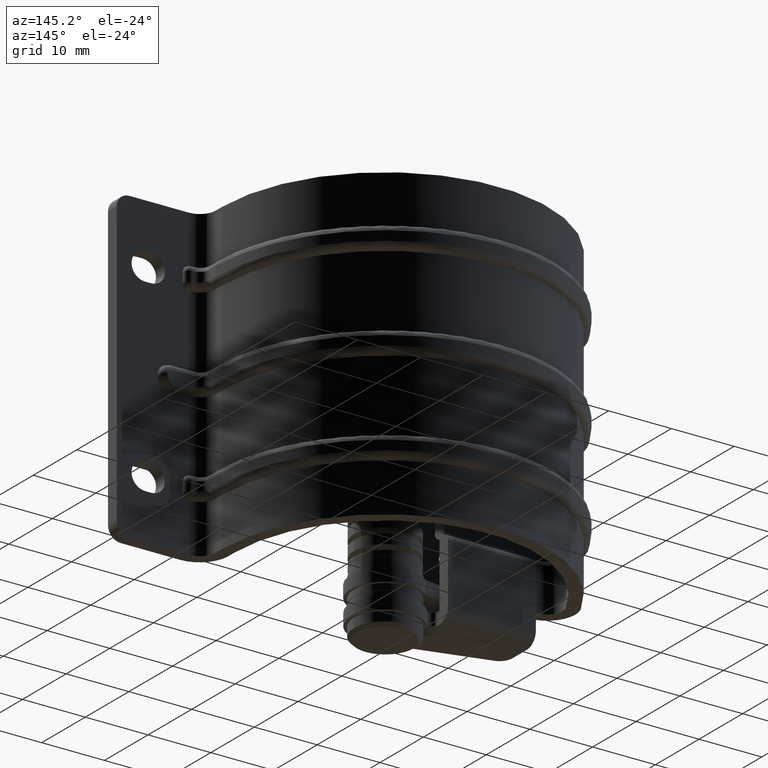
[diagram: clean part render]
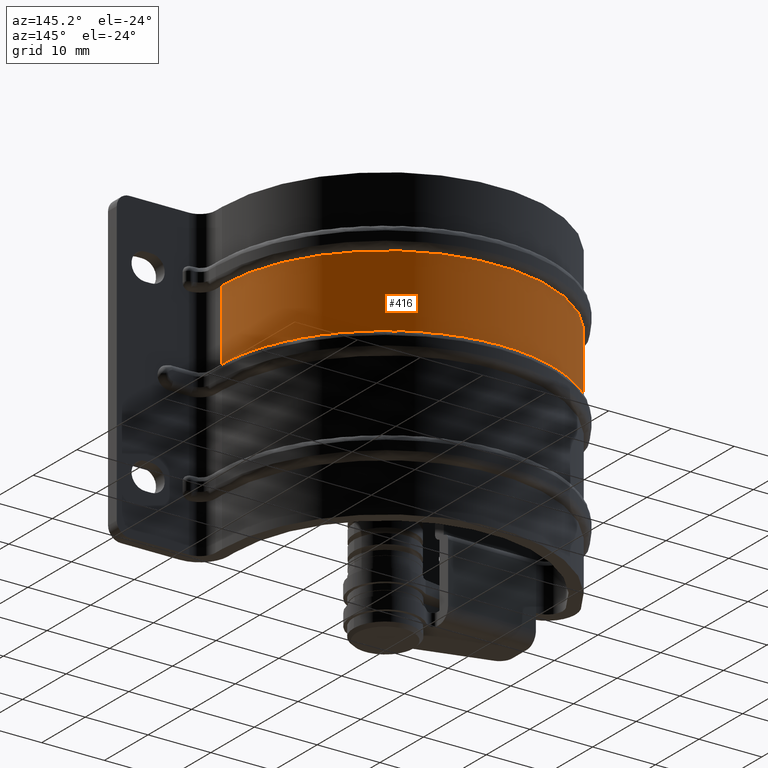
[diagram: same view with one face highlighted and labeled with its STEP entity id]
A machine part, auxiliary view. The second image highlights one B-rep face of the part: STEP entity #416.
In plain terms, the highlighted cylindrical surface (partial cylindrical patch) has radius 26 mm, axis along (0, 0, -1).
Its self-contained STEP definition (entity closure, byte-faithful):
#416=ADVANCED_FACE('',(#3645),#3644,.T.);
#3644=CYLINDRICAL_SURFACE('',#7933,2.59999999989E+01);
#3645=FACE_OUTER_BOUND('',#7934,.T.);
#7930=CARTESIAN_POINT('',(9.75500000000E+02,-2.53969145930E-09,7.82319993675E-07));
#7931=DIRECTION('',(1.00000000000E+00,-0.00000000000E+00,-0.00000000000E+00));
#7932=DIRECTION('',(-0.00000000000E+00,-0.00000000000E+00,-1.00000000000E+00));
#7933=AXIS2_PLACEMENT_3D('',#7930,#7931,#7932);
#7934=EDGE_LOOP('',(#11052,#11053,#11054,#11055));
#11052=ORIENTED_EDGE('',*,*,#12589,.T.);
#11053=ORIENTED_EDGE('',*,*,#12002,.F.);
#11054=ORIENTED_EDGE('',*,*,#12590,.F.);
#11055=ORIENTED_EDGE('',*,*,#12018,.T.);
#12002=EDGE_CURVE('',#14554,#14574,#14588,.T.);
#12018=EDGE_CURVE('',#14682,#14662,#14696,.T.);
#12589=EDGE_CURVE('',#14662,#14574,#18506,.T.);
#12590=EDGE_CURVE('',#14682,#14554,#18512,.T.);
#14554=VERTEX_POINT('',#21118);
#14574=VERTEX_POINT('',#21130);
#14588=CIRCLE('',#21143,2.59999999989E+01);
#14662=VERTEX_POINT('',#21188);
#14682=VERTEX_POINT('',#21202);
#14696=CIRCLE('',#21215,2.59999999989E+01);
#18506=LINE('',#24007,#24008);
#18512=LINE('',#24010,#24011);
#21118=CARTESIAN_POINT('',(-1.32500000010E+01,-2.53968668318E-09,-2.59999992166E+01));
#21130=CARTESIAN_POINT('',(-1.32500000010E+01,-1.08837209322E+01,2.36123835224E+01));
#21140=CARTESIAN_POINT('',(-1.32500000010E+01,-2.53969145930E-09,7.82319993675E-07));
#21141=DIRECTION('',(-1.00000000000E+00,0.00000000000E+00,0.00000000000E+00));
#21142=DIRECTION('',(-0.00000000000E+00,-0.00000000000E+00,-1.00000000000E+00));
#21143=AXIS2_PLACEMENT_3D('',#21140,#21141,#21142);
#21188=CARTESIAN_POINT('',(-1.74999999959E+00,-1.08837209322E+01,2.36123835224E+01));
#21202=CARTESIAN_POINT('',(-1.74999999959E+00,-2.53968668318E-09,-2.59999992166E+01));
#21212=CARTESIAN_POINT('',(-1.74999999959E+00,-2.53969145930E-09,7.82319993675E-07));
#21213=DIRECTION('',(-1.00000000000E+00,0.00000000000E+00,0.00000000000E+00));
#21214=DIRECTION('',(-0.00000000000E+00,-0.00000000000E+00,-1.00000000000E+00));
#21215=AXIS2_PLACEMENT_3D('',#21212,#21213,#21214);
#24007=CARTESIAN_POINT('',(-1.74999999959E+00,-1.08837209322E+01,2.36123835224E+01));
#24008=VECTOR('',#24009,1.15000000014E+01);
#24009=DIRECTION('',(-1.00000000000E+00,0.00000000000E+00,0.00000000000E+00));
#24010=CARTESIAN_POINT('',(-1.74999999959E+00,-2.53968668318E-09,-2.59999992166E+01));
#24011=VECTOR('',#24012,1.15000000014E+01);
#24012=DIRECTION('',(-1.00000000000E+00,0.00000000000E+00,0.00000000000E+00));